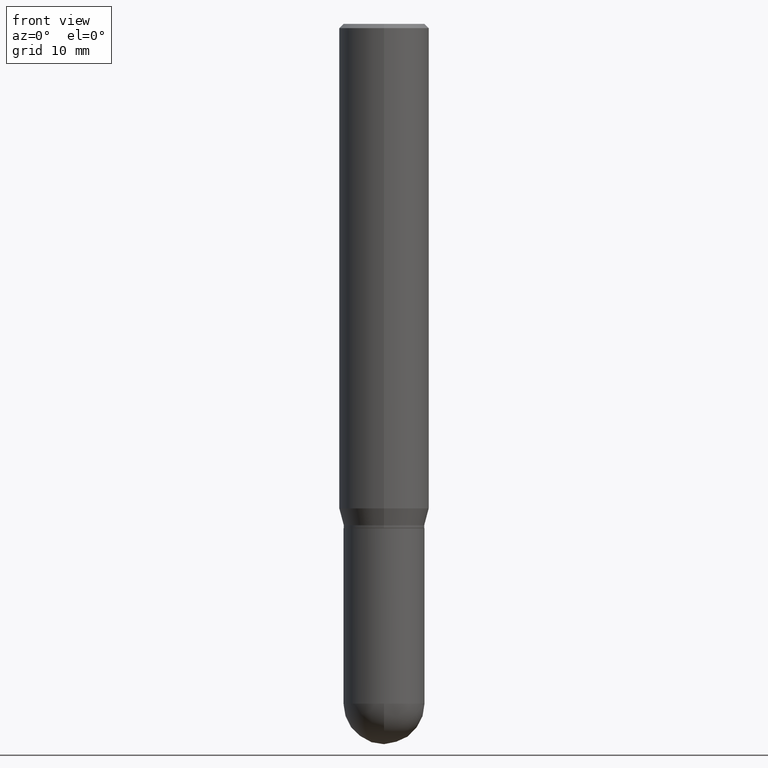
[diagram: clean part render]
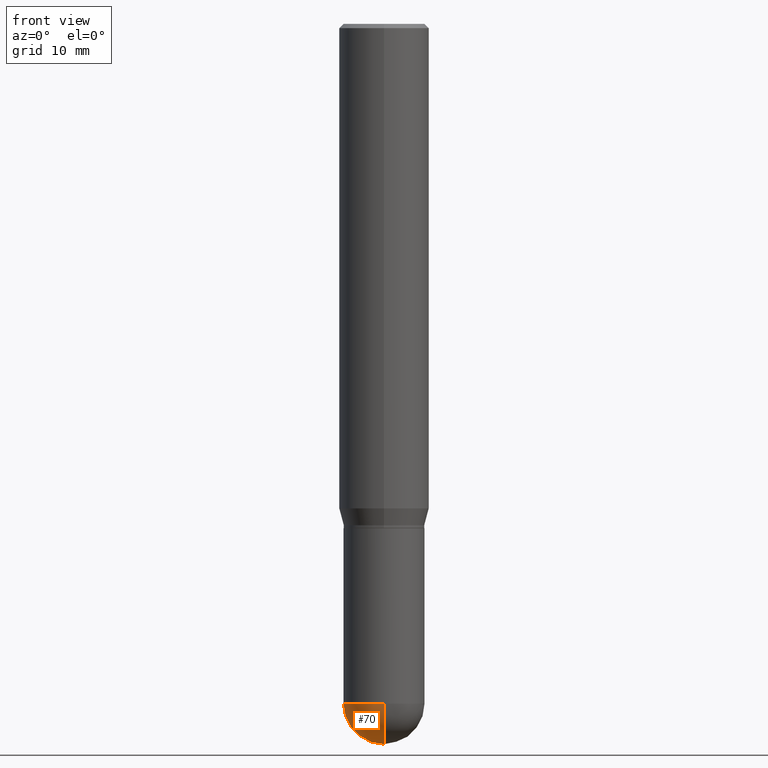
[diagram: same view with one face highlighted and labeled with its STEP entity id]
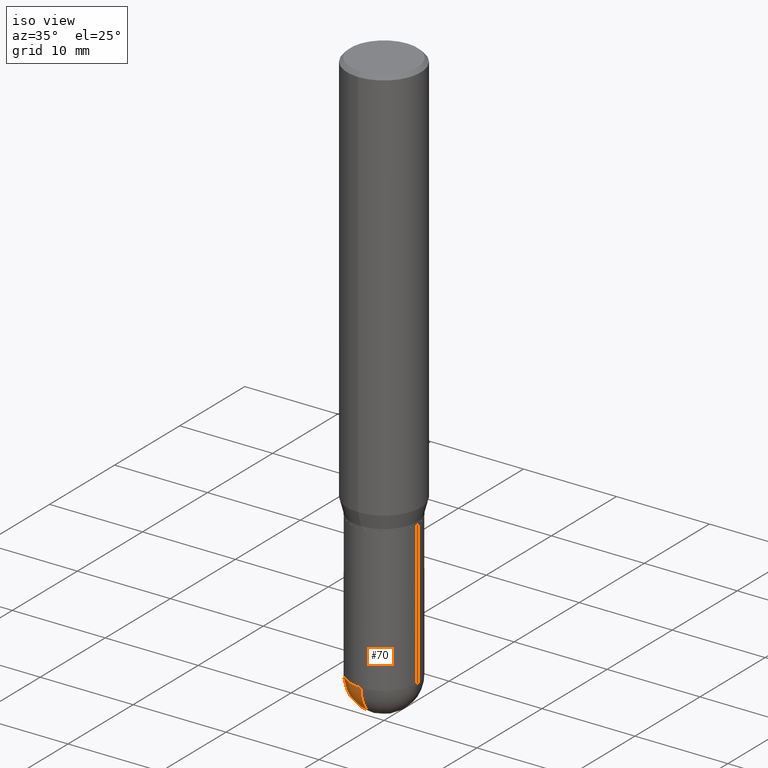
[diagram: same view with one face highlighted and labeled with its STEP entity id]
A machine part, front view. The second image highlights one B-rep face of the part: STEP entity #70.
A second angle (iso view) of the same face is appended — the face is thin or edge-on in the first view.
In plain terms, the highlighted spherical surface has radius 3.5712 mm.
Its self-contained STEP definition (entity closure, byte-faithful):
#11 = CIRCLE ( 'NONE', #312, 0.1406000000000000305 ) ;
#47 = DIRECTION ( 'NONE',  ( -7.105427357601001859E-15, -1.000000000000000000, 0.000000000000000000 ) ) ;
#48 = EDGE_CURVE ( 'NONE', #328, #292, #112, .T. ) ;
#56 = ORIENTED_EDGE ( 'NONE', *, *, #48, .F. ) ;
#59 = AXIS2_PLACEMENT_3D ( 'NONE', #279, #87, #47 ) ;
#70 = ADVANCED_FACE ( 'NONE', ( #388 ), #512, .T. ) ;
#72 = CARTESIAN_POINT ( 'NONE',  ( 5.769839101313211634E-29, -8.237801070866517629E-15, -2.359399999999999942 ) ) ;
#87 = DIRECTION ( 'NONE',  ( -1.000000000000000000, 7.105427357601001070E-15, -4.926315508542082329E-29 ) ) ;
#112 = CIRCLE ( 'NONE', #399, 0.1406000000000000860 ) ;
#117 = CARTESIAN_POINT ( 'NONE',  ( -0.1406000000000000583, -6.174923620442310269E-15, -2.359399999999999942 ) ) ;
#137 = DIRECTION ( 'NONE',  ( -2.445468806185136597E-29, 3.491481338843145583E-15, 1.000000000000000000 ) ) ;
#152 = CARTESIAN_POINT ( 'NONE',  ( 5.757815463287349061E-29, -8.255019604862529009E-15, -2.359399999999999942 ) ) ;
#163 = CARTESIAN_POINT ( 'NONE',  ( 5.757815463287349061E-29, -8.255019604862529009E-15, -2.359399999999999942 ) ) ;
#189 = DIRECTION ( 'NONE',  ( 1.000000000000000000, -6.982962677686265922E-15, 4.883557194083112340E-29 ) ) ;
#195 = DIRECTION ( 'NONE',  ( 1.000000000000000000, -6.982962677686270655E-15, 0.000000000000000000 ) ) ;
#200 = EDGE_CURVE ( 'NONE', #292, #361, #11, .T. ) ;
#203 = AXIS2_PLACEMENT_3D ( 'NONE', #152, #391, #444 ) ;
#213 = CARTESIAN_POINT ( 'NONE',  ( 5.769839101313211634E-29, -8.237801070866517629E-15, -2.359399999999999942 ) ) ;
#242 = EDGE_LOOP ( 'NONE', ( #56, #252, #453, #357 ) ) ;
#252 = ORIENTED_EDGE ( 'NONE', *, *, #463, .T. ) ;
#261 = AXIS2_PLACEMENT_3D ( 'NONE', #72, #398, #195 ) ;
#279 = CARTESIAN_POINT ( 'NONE',  ( 5.757815463287349061E-29, -8.255019604862529009E-15, -2.359399999999999942 ) ) ;
#281 = VERTEX_POINT ( 'NONE', #385 ) ;
#292 = VERTEX_POINT ( 'NONE', #375 ) ;
#312 = AXIS2_PLACEMENT_3D ( 'NONE', #213, #137, #381 ) ;
#313 = DIRECTION ( 'NONE',  ( 6.982962677686266711E-15, 1.000000000000000000, 0.000000000000000000 ) ) ;
#328 = VERTEX_POINT ( 'NONE', #470 ) ;
#333 = EDGE_CURVE ( 'NONE', #361, #281, #510, .T. ) ;
#357 = ORIENTED_EDGE ( 'NONE', *, *, #200, .F. ) ;
#361 = VERTEX_POINT ( 'NONE', #117 ) ;
#375 = CARTESIAN_POINT ( 'NONE',  ( 9.818045524827470871E-16, 0.1405999999999918426, -2.359400000000000386 ) ) ;
#381 = DIRECTION ( 'NONE',  ( 1.000000000000000000, -6.982962677686270655E-15, 0.000000000000000000 ) ) ;
#385 = CARTESIAN_POINT ( 'NONE',  ( -9.990230864786434913E-16, -0.1406000000000083017, -2.359399999999999498 ) ) ;
#388 = FACE_OUTER_BOUND ( 'NONE', #242, .T. ) ;
#391 = DIRECTION ( 'NONE',  ( -1.000000000000000000, 6.982962677686265922E-15, -4.883557194083112340E-29 ) ) ;
#398 = DIRECTION ( 'NONE',  ( -2.445468806185136597E-29, 3.491481338843145583E-15, 1.000000000000000000 ) ) ;
#399 = AXIS2_PLACEMENT_3D ( 'NONE', #163, #189, #313 ) ;
#444 = DIRECTION ( 'NONE',  ( 6.982962677686265922E-15, 1.000000000000000000, -3.885985766236502230E-15 ) ) ;
#453 = ORIENTED_EDGE ( 'NONE', *, *, #333, .F. ) ;
#463 = EDGE_CURVE ( 'NONE', #328, #281, #501, .T. ) ;
#470 = CARTESIAN_POINT ( 'NONE',  ( 6.107660196449910766E-29, -8.737312614105869844E-15, -2.500000000000000000 ) ) ;
#501 = CIRCLE ( 'NONE', #59, 0.1406000000000000860 ) ;
#510 = CIRCLE ( 'NONE', #261, 0.1406000000000000305 ) ;
#512 = SPHERICAL_SURFACE ( 'NONE', #203, 0.1406000000000000860 ) ;